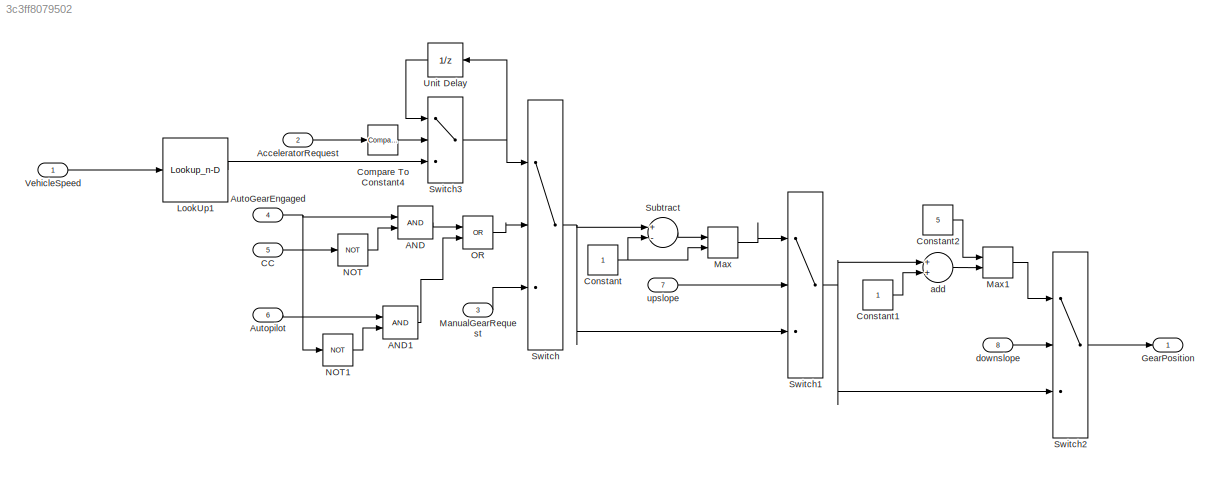
MODEL slx_3c3ff8079502
KIND model
CONFIG AbsTol = auto
CONFIG EnableMultiTasking = off
CONFIG FixedStep = auto
CONFIG MaxStep = auto
CONFIG MinStep = auto
CONFIG RelTol = 1e-3
CONFIG SampleTimeConstraint = Unconstrained
CONFIG Solver = FixedStepAuto
CONFIG SolverName = FixedStepAuto
CONFIG StartTime = 0.0
CONFIG StopTime = 100
BLOCK [Logic] AND
  AllPortsSameDT = off
  OutDataTypeStr = boolean
  Ports = [2, 1]
BLOCK [Logic] AND1
  AllPortsSameDT = off
  OutDataTypeStr = boolean
  Ports = [2, 1]
BLOCK [Inport] AcceleratorRequest
  IconDisplay = Port number
  Port = 2
BLOCK [Inport] AutoGearEngaged
  IconDisplay = Port number
  Port = 4
BLOCK [Inport] Autopilot
  IconDisplay = Port number
  Port = 6
BLOCK [Inport] CC
  IconDisplay = Port number
  Port = 5
BLOCK [Reference] Compare To Constant4  REF=simulink/Logic and Bit
Operations/Compare
To Constant
  Ports = [1, 1]
  SourceBlock = simulink/Logic and Bit\nOperations/Compare\nTo Constant
  SourceProductBaseCode = SL
  SourceProductName = Simulink
  SourceType = Compare To Constant
BLOCK [Constant] Constant
BLOCK [Constant] Constant1
BLOCK [Constant] Constant2
  Value = 5
BLOCK [Outport] GearPosition
  IconDisplay = Port number
BLOCK [Lookup_n-D] LookUp1
  BreakpointsForDimension1 = [0 20 30 40 60]
  InternalRulePriority = Speed
  InterpMethod = Flat
  NumberOfTableDimensions = 1
  Ports = [1, 1]
  RemoveProtectionInput = on
  RndMeth = Simplest
  Table = [1 2 3 4 5]
BLOCK [Inport] ManualGearRequest
  IconDisplay = Port number
  Port = 3
BLOCK [MinMax] Max
  Function = max
  InputSameDT = off
  Inputs = 2
  Ports = [2, 1]
  SaturateOnIntegerOverflow = off
BLOCK [MinMax] Max1
  InputSameDT = off
  Inputs = 2
  Ports = [2, 1]
  SaturateOnIntegerOverflow = off
BLOCK [Logic] NOT
  AllPortsSameDT = off
  Operator = NOT
  OutDataTypeStr = boolean
  Ports = [1, 1]
BLOCK [Logic] NOT1
  AllPortsSameDT = off
  Operator = NOT
  OutDataTypeStr = boolean
  Ports = [1, 1]
BLOCK [Logic] OR
  AllPortsSameDT = off
  Operator = OR
  OutDataTypeStr = boolean
  Ports = [2, 1]
BLOCK [Sum] Subtract
  InputSameDT = off
  Inputs = +-
  OutDataTypeStr = Inherit: Inherit via internal rule
  Ports = [2, 1]
  SaturateOnIntegerOverflow = off
BLOCK [Switch] Switch
  Criteria = u2 ~= 0
  InputSameDT = off
  SaturateOnIntegerOverflow = off
BLOCK [Switch] Switch1
  Criteria = u2 ~= 0
  InputSameDT = off
  SaturateOnIntegerOverflow = off
BLOCK [Switch] Switch2
  Criteria = u2 ~= 0
  InputSameDT = off
  SaturateOnIntegerOverflow = off
BLOCK [Switch] Switch3
  Criteria = u2 ~= 0
  InputSameDT = off
  SaturateOnIntegerOverflow = off
BLOCK [UnitDelay] Unit Delay
  HasFrameUpgradeWarning = on
  SampleTime = -1
BLOCK [Inport] VehicleSpeed
  IconDisplay = Port number
BLOCK [Sum] add
  InputSameDT = off
  OutDataTypeStr = Inherit: Inherit via internal rule
  Ports = [2, 1]
  SaturateOnIntegerOverflow = off
BLOCK [Inport] downslope
  IconDisplay = Port number
  Port = 8
BLOCK [Inport] upslope
  IconDisplay = Port number
  Port = 7
LINE AND1:1 -> OR:2
LINE AND:1 -> OR:1
LINE AcceleratorRequest:1 -> Compare To Constant4:1
NET AutoGearEngaged:1 -> AND:1, NOT1:1
LINE Autopilot:1 -> AND1:1
LINE CC:1 -> NOT:1
LINE Compare To Constant4:1 -> Switch3:2
LINE Constant1:1 -> add:2
LINE Constant2:1 -> Max1:1
NET Constant:1 -> Max:2, Subtract:2
LINE LookUp1:1 -> Switch3:3
LINE ManualGearRequest:1 -> Switch:3
LINE Max1:1 -> Switch2:1
LINE Max:1 -> Switch1:1
LINE NOT1:1 -> AND1:2
LINE NOT:1 -> AND:2
LINE OR:1 -> Switch:2
LINE Subtract:1 -> Max:1
NET Switch1:1 -> Switch2:3, add:1
LINE Switch2:1 -> GearPosition:1
NET Switch3:1 -> Switch:1, Unit Delay:1
NET Switch:1 -> Subtract:1, Switch1:3
LINE Unit Delay:1 -> Switch3:1
LINE VehicleSpeed:1 -> LookUp1:1
LINE add:1 -> Max1:2
LINE downslope:1 -> Switch2:2
LINE upslope:1 -> Switch1:2
note: NET lines group one-source signal fan-out (src -> all destinations, sorted); 1:1 wires keep LINE
